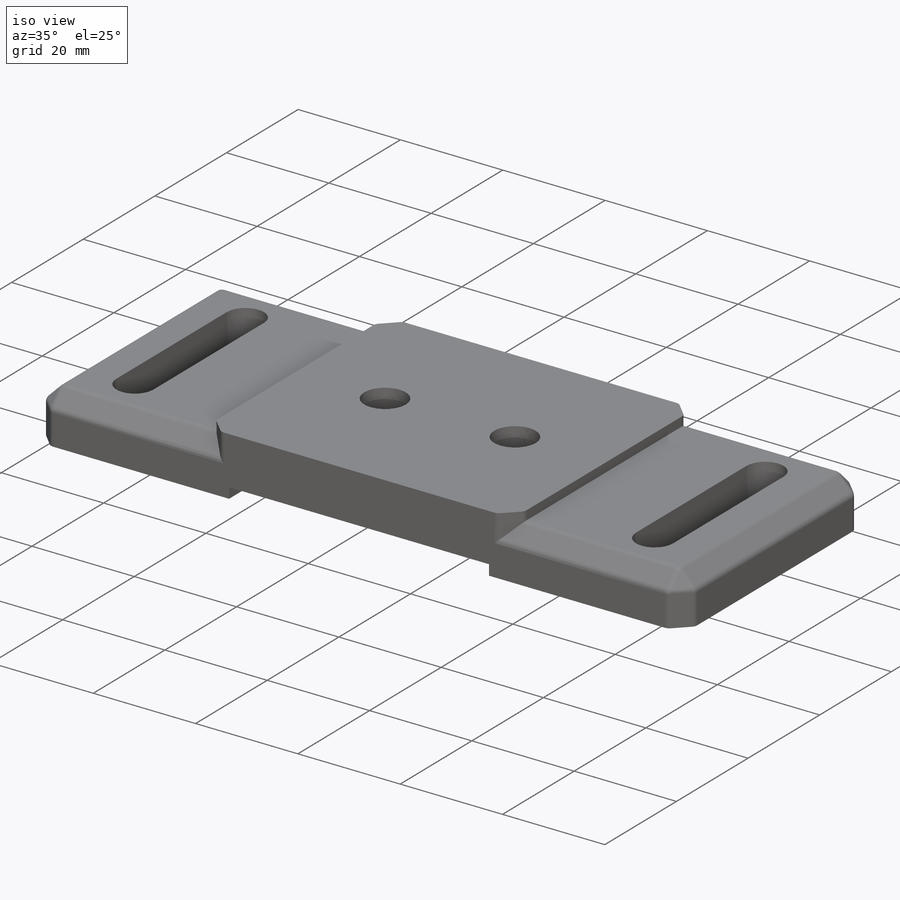
[diagram: iso view]
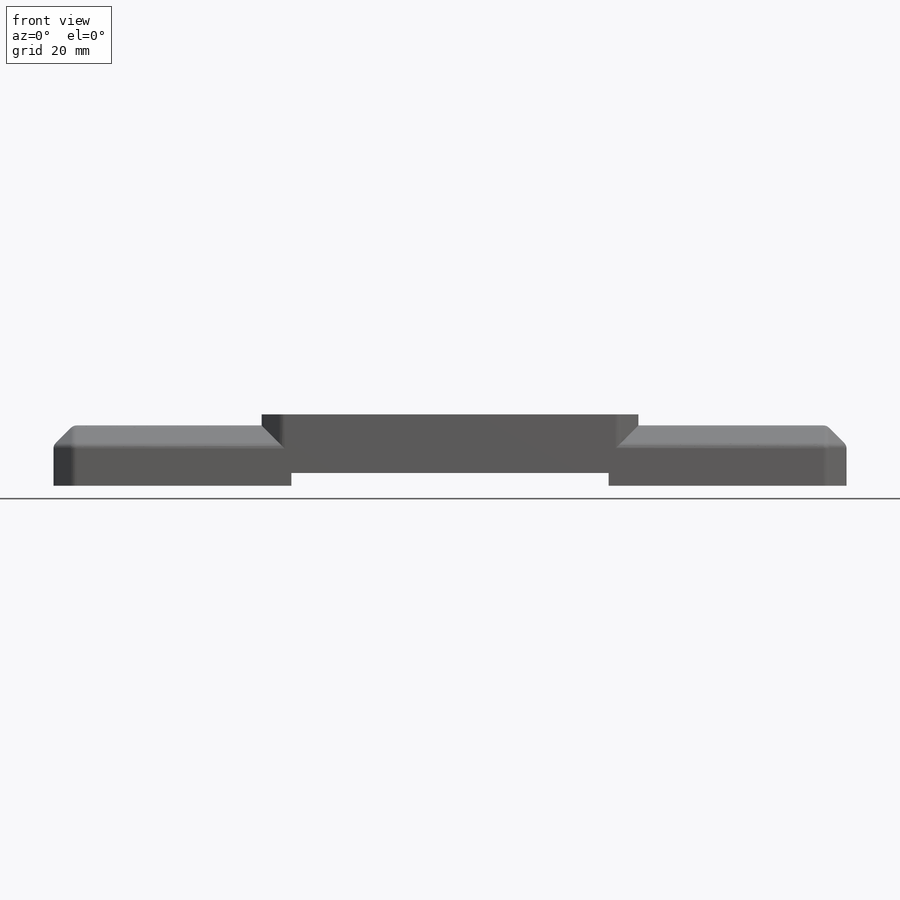
[diagram: front view]
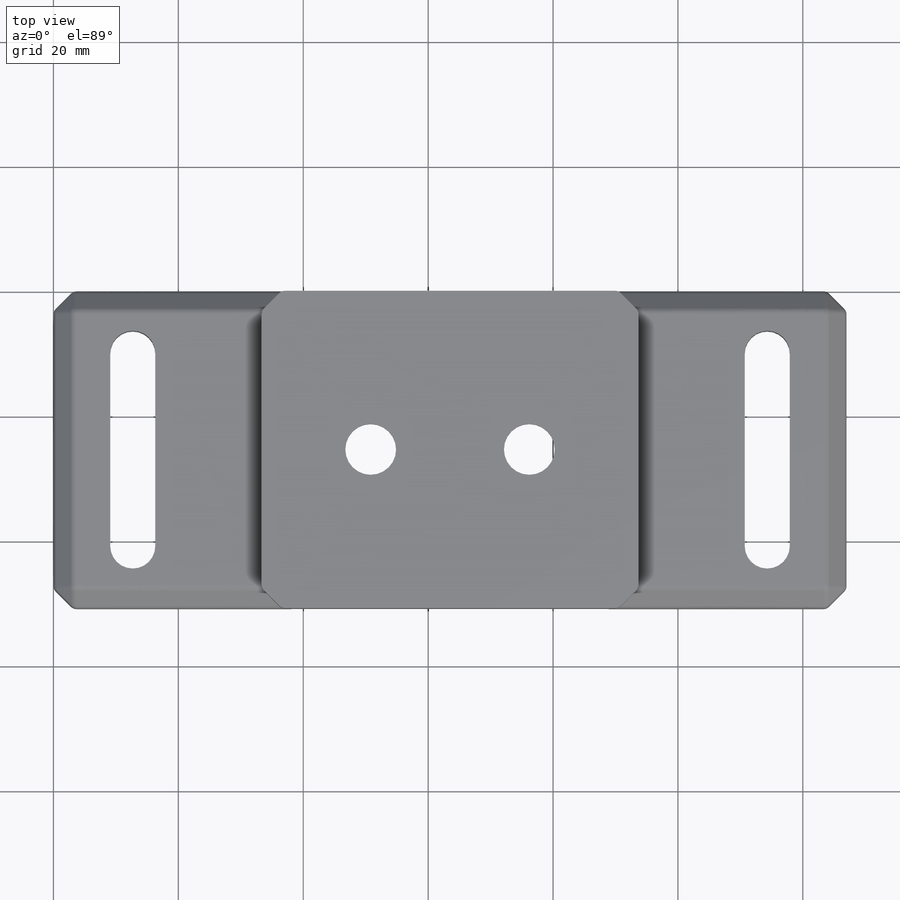
[diagram: top view]
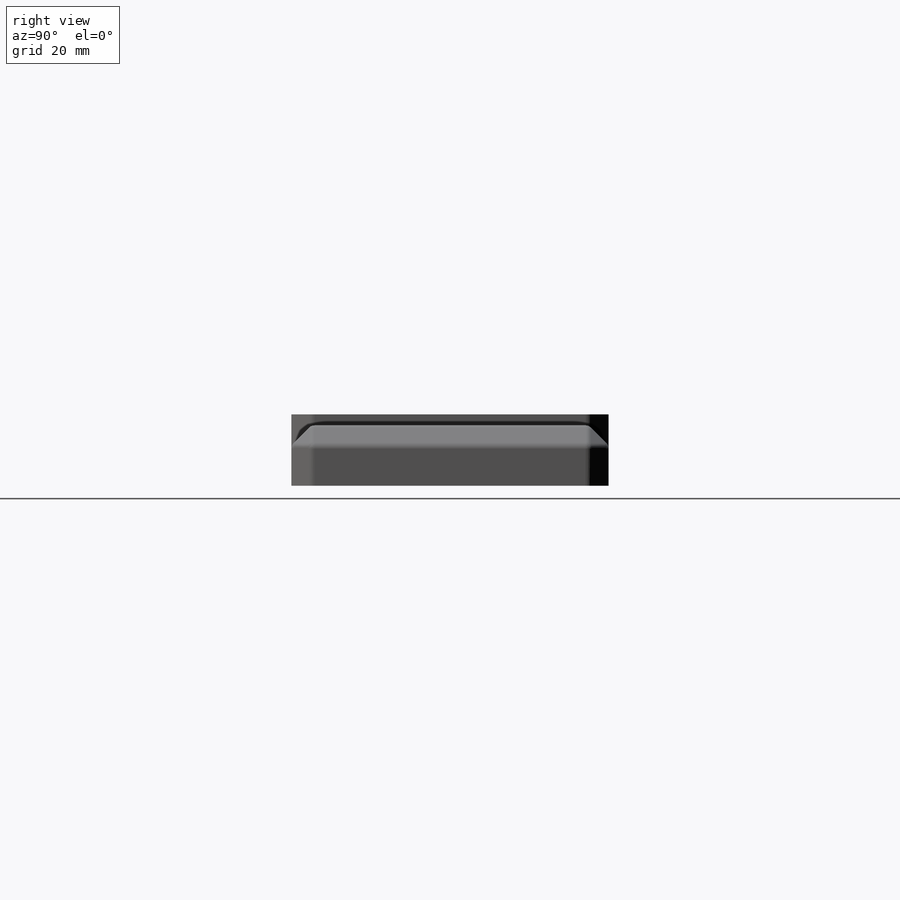
[diagram: right view]
SOLIDWORKS PART (.sldprt)
format: sldprt  version: not decoded by parser v0  size: 706,560 bytes
history: native  units: mm
features: sketch x7, cut_extrude x6, material x1, extrude x1, chamfer x1, fillet x1 + 1 further entry (+10 scaffold rows collapsed)
feature tree (28):
  scaffold x10  (default folders/planes/origin — collapsed)
  material  "Material <not specified>"
  "Origin"  ID=392984584
  sketch  "Sketch1"  dims[D1=11.43mm D2=127.0mm]
  extrude  "Boss-Extrude1"  Depth=50.8mm
  sketch  "Sketch2"  dims[D1=9.652mm D2=60.325mm D3=33.3375mm D4=38.5318mm]
  cut_extrude  "Cut-Extrude1"  [1 undecoded]
  chamfer  "Chamfer1"  Distance=3.175mm Angle=45deg
  fillet  "Fillet1"  Radius=1.27mm
  sketch  "Sketch3"  dims[c1.D2=3.6068mm c1.D3=~3.611983mm c1.D4=3.6068mm c1.D5=3.6068mm c2.D4=3.6068mm c2.D1=7.2136mm c2.D2=30.8864mm c2.D3=30.8864mm c2.D6=7.2136mm c2.D7=25.4mm c2.D8=25.4mm c2.D9=12.7mm c2.D10=12.7mm]
  cut_extrude  "Cut-Extrude2"  Depth=50.8mm
  sketch  "Sketch4"  dims[D1=13.208mm D2=13.208mm D3=63.5mm D4=12.7mm D5=12.7mm D6=25.4mm D7=25.4mm]
  cut_extrude  "Cut-Extrude3"  Depth=9.398mm
  sketch  "Sketch5"  dims[D1=8.128mm D2=8.128mm D3=50.8mm D4=25.4mm D5=25.4mm D6=25.4mm]
  cut_extrude  "Cut-Extrude4"  [1 undecoded]
  sketch  "Sketch6"  dims[c1.D1=2.032mm c1.D2=25.4mm c1.D3=25.4mm c2.D2=38.1mm c2.D3=38.1mm]
  cut_extrude  "Cut-Extrude5"  [1 undecoded]
  sketch  "Sketch7"
  cut_extrude  "Cut-Extrude6"  Depth=0.254mm
decode coverage: 12 of 16 modeling features carry decoded parameters; 1 rows unclassified (native names shown)
note: ~ marks probable driven/reference dimensions
note: 3 parameter values undecoded
summary: no parameter record found for 3 features
note: suppression state not decoded; provenance and decode notes live in map.json
